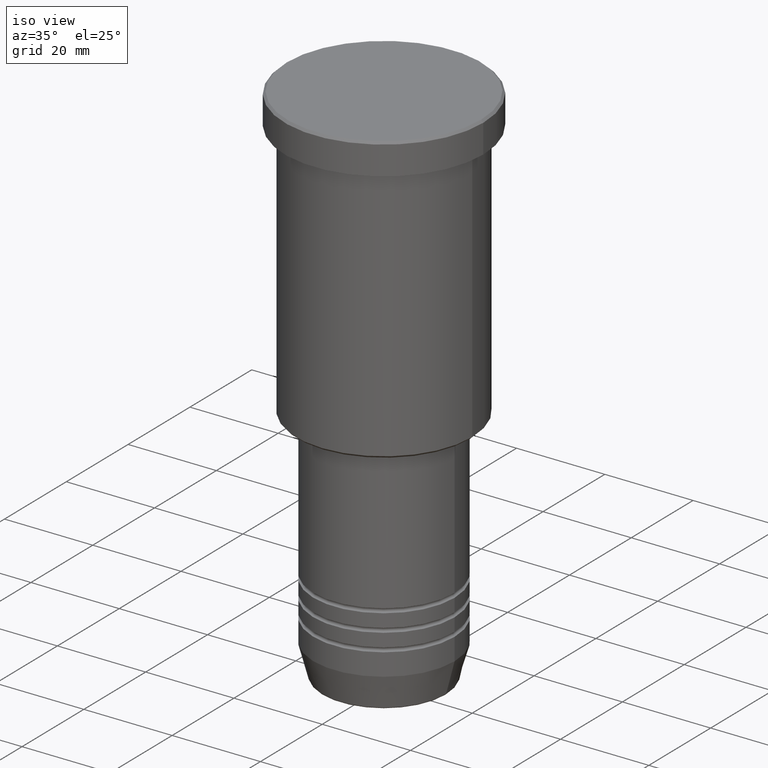
[diagram: clean part render]
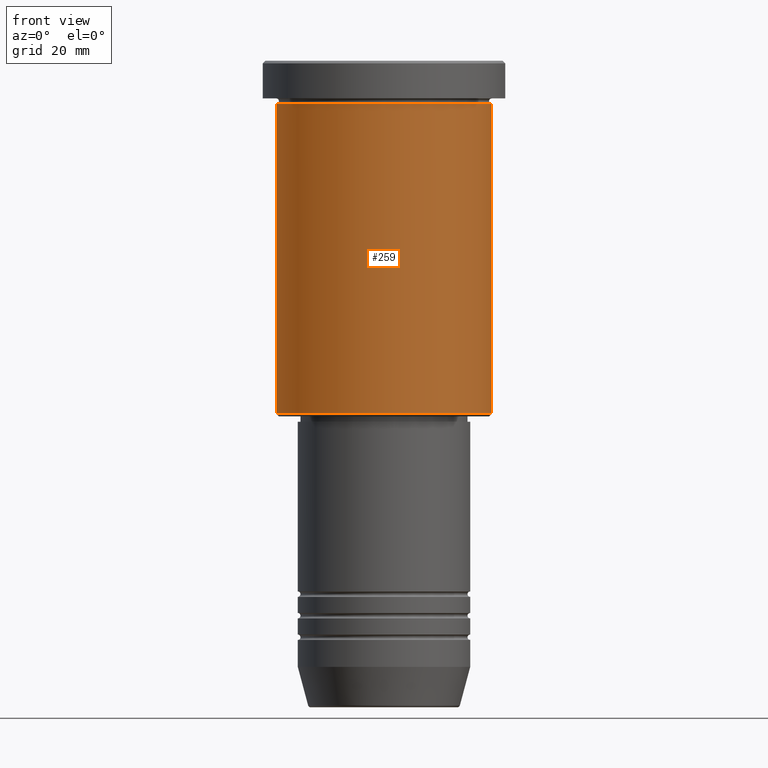
[diagram: tour spotlight — one face highlighted and labeled with its STEP entity id]
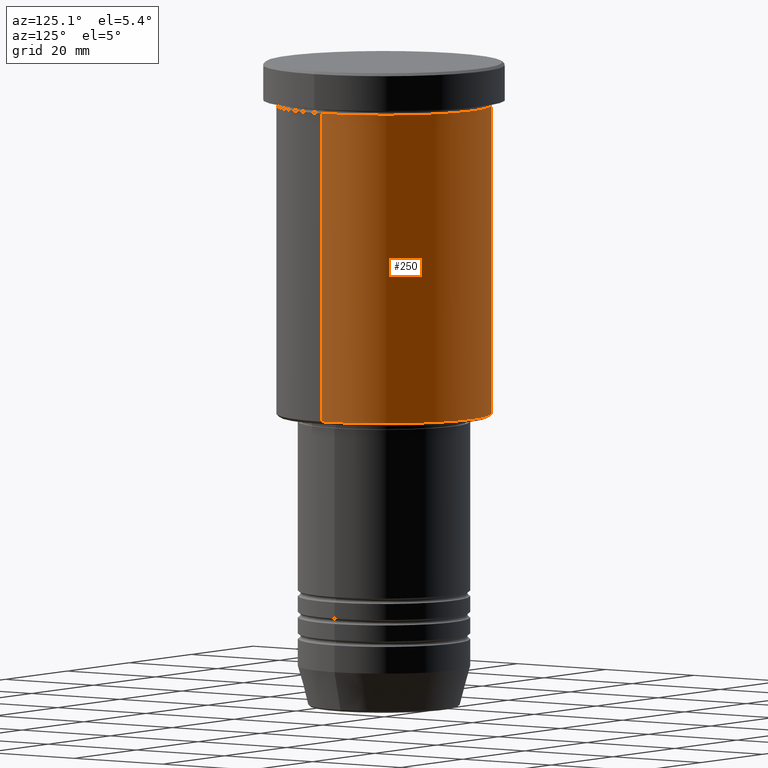
[diagram: tour spotlight — one face highlighted and labeled with its STEP entity id]
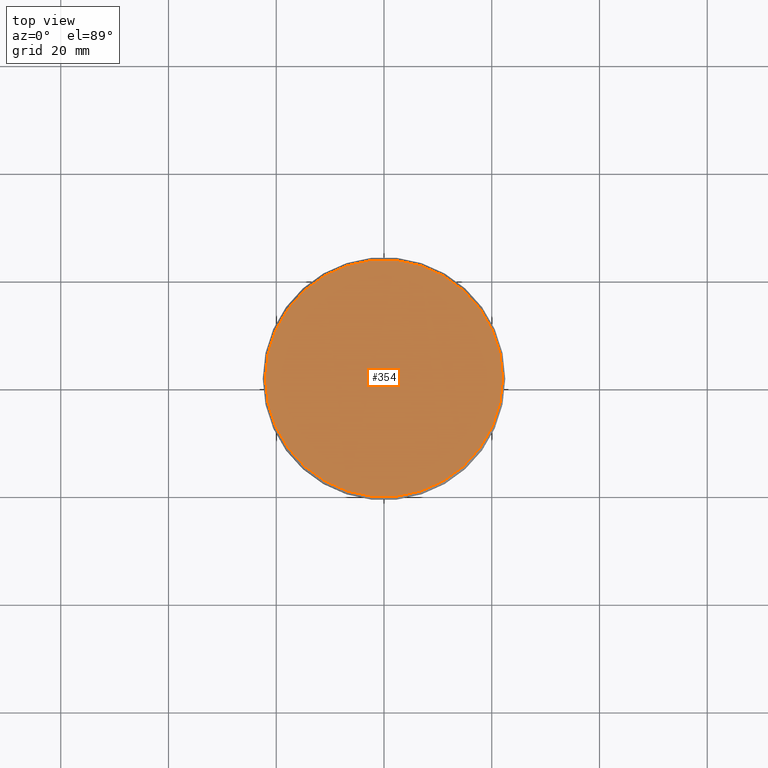
[diagram: tour spotlight — one face highlighted and labeled with its STEP entity id]
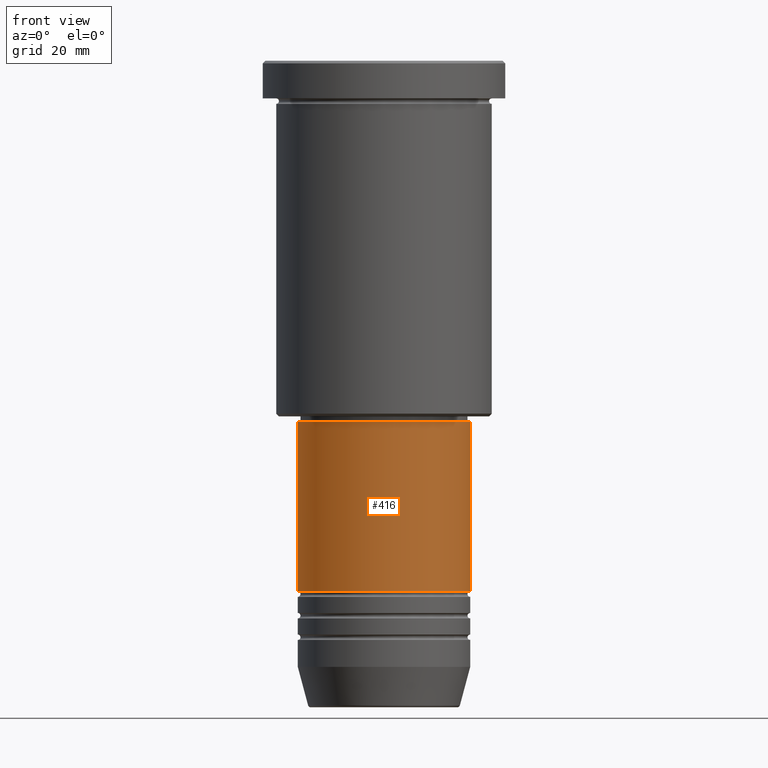
[diagram: tour spotlight — one face highlighted and labeled with its STEP entity id]
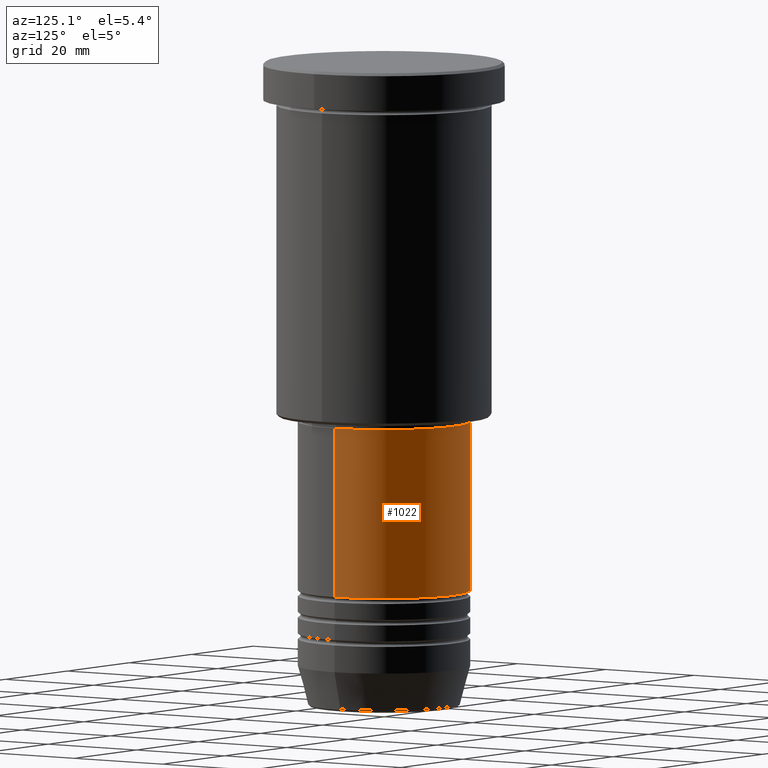
[diagram: tour spotlight — one face highlighted and labeled with its STEP entity id]
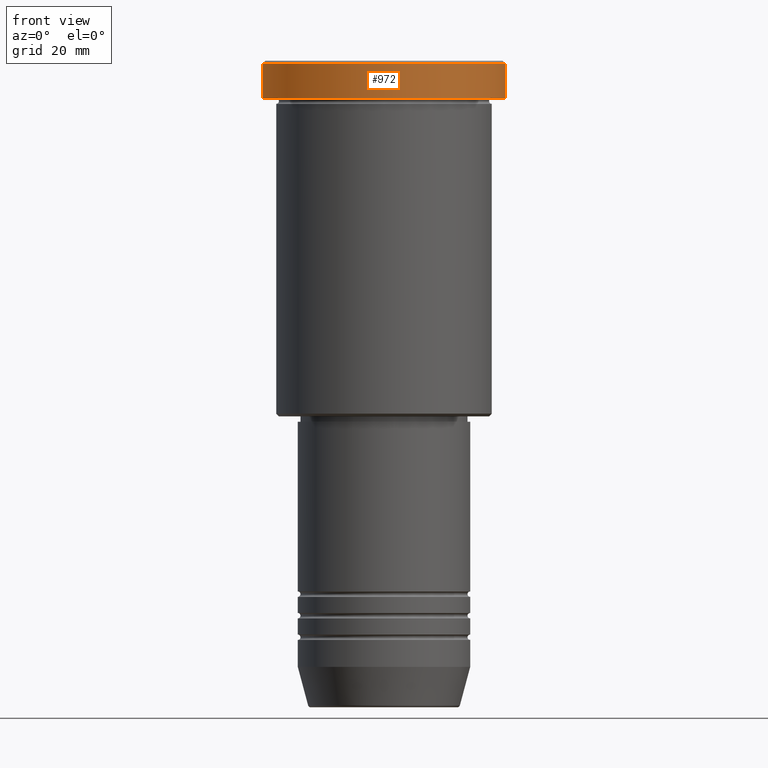
[diagram: tour spotlight — one face highlighted and labeled with its STEP entity id]
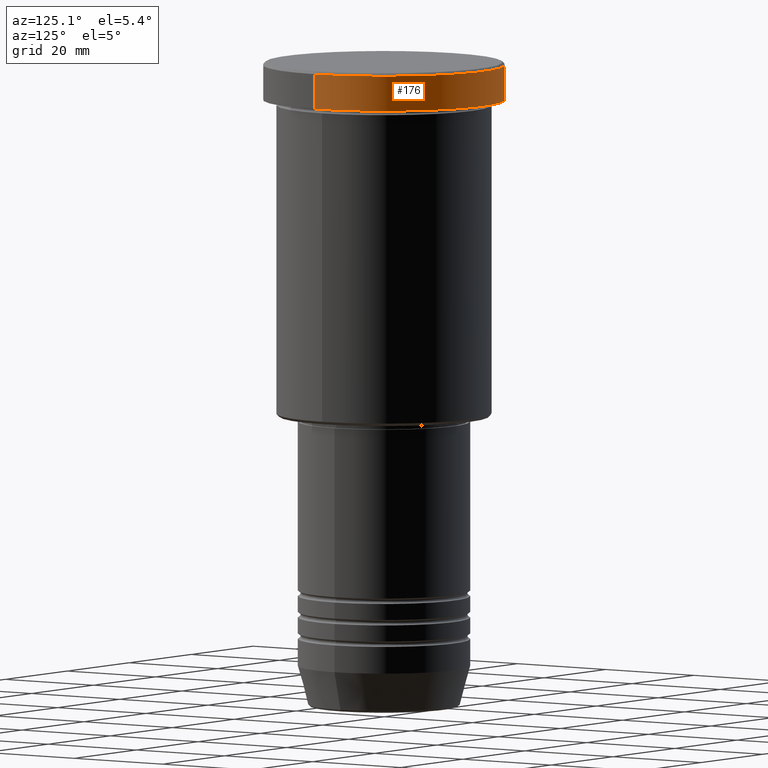
[diagram: tour spotlight — one face highlighted and labeled with its STEP entity id]
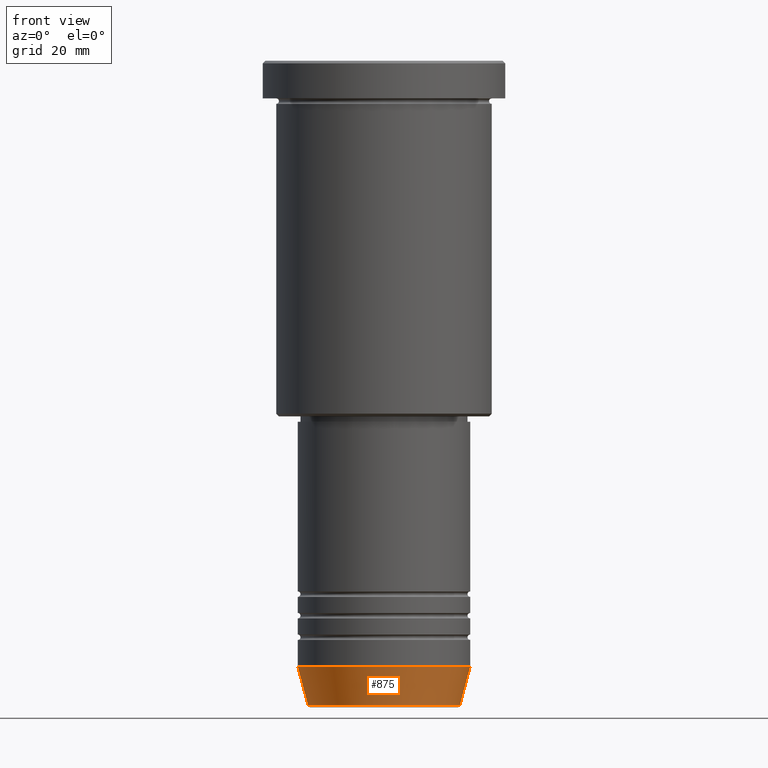
[diagram: tour spotlight — one face highlighted and labeled with its STEP entity id]
A machine part: a face-by-face anatomy tour. The part has 43 B-rep faces; the first image is the clean iso view, then the 8 largest visible faces are spotlighted one at a time (largest first), each with its STEP entity span.

Face 1 — front view, entity #259. In plain terms, the highlighted cylindrical surface (partial cylindrical patch) has radius 20 mm, axis along (-0, -0, 1).
Definition (entity closure, byte-faithful):
#16 = CARTESIAN_POINT ( 'NONE',  ( 0.000000000000000000, 0.000000000000000000, -7.999999999999994671 ) ) ;
#25 = DIRECTION ( 'NONE',  ( 1.000000000000000000, 0.000000000000000000, 0.000000000000000000 ) ) ;
#96 = VERTEX_POINT ( 'NONE', #858 ) ;
#125 = EDGE_CURVE ( 'NONE', #96, #786, #397, .T. ) ;
#132 = EDGE_LOOP ( 'NONE', ( #145, #516, #413, #903 ) ) ;
#145 = ORIENTED_EDGE ( 'NONE', *, *, #125, .F. ) ;
#151 = CARTESIAN_POINT ( 'NONE',  ( 0.000000000000000000, 0.000000000000000000, -65.49999999999997158 ) ) ;
#179 = CARTESIAN_POINT ( 'NONE',  ( 20.00000000000000355, 0.000000000000000000, -65.49999999999997158 ) ) ;
#184 = AXIS2_PLACEMENT_3D ( 'NONE', #201, #563, #468 ) ;
#201 = CARTESIAN_POINT ( 'NONE',  ( 0.000000000000000000, 0.000000000000000000, 0.000000000000000000 ) ) ;
#203 = CIRCLE ( 'NONE', #1119, 20.00000000000000355 ) ;
#232 = EDGE_CURVE ( 'NONE', #627, #827, #1045, .T. ) ;
#259 = ADVANCED_FACE ( 'NONE', ( #571 ), #1138, .T. ) ;
#268 = DIRECTION ( 'NONE',  ( -0.000000000000000000, -0.000000000000000000, 1.000000000000000000 ) ) ;
#309 = CIRCLE ( 'NONE', #467, 20.00000000000000000 ) ;
#348 = VECTOR ( 'NONE', #672, 1000.000000000000000 ) ;
#373 = EDGE_CURVE ( 'NONE', #786, #827, #309, .T. ) ;
#390 = DIRECTION ( 'NONE',  ( -0.000000000000000000, -0.000000000000000000, 1.000000000000000000 ) ) ;
#397 = LINE ( 'NONE', #481, #1051 ) ;
#413 = ORIENTED_EDGE ( 'NONE', *, *, #232, .T. ) ;
#467 = AXIS2_PLACEMENT_3D ( 'NONE', #16, #268, #25 ) ;
#468 = DIRECTION ( 'NONE',  ( 1.000000000000000000, 0.000000000000000000, 0.000000000000000000 ) ) ;
#481 = CARTESIAN_POINT ( 'NONE',  ( -20.00000000000000355, 2.449293598294706907E-15, 0.000000000000000000 ) ) ;
#516 = ORIENTED_EDGE ( 'NONE', *, *, #1170, .T. ) ;
#563 = DIRECTION ( 'NONE',  ( -0.000000000000000000, -0.000000000000000000, 1.000000000000000000 ) ) ;
#571 = FACE_OUTER_BOUND ( 'NONE', #132, .T. ) ;
#627 = VERTEX_POINT ( 'NONE', #179 ) ;
#672 = DIRECTION ( 'NONE',  ( -0.000000000000000000, -0.000000000000000000, 1.000000000000000000 ) ) ;
#718 = CARTESIAN_POINT ( 'NONE',  ( -20.00000000000000000, 2.449293598294706513E-15, -7.999999999999994671 ) ) ;
#754 = DIRECTION ( 'NONE',  ( -1.000000000000000000, 0.000000000000000000, 0.000000000000000000 ) ) ;
#768 = CARTESIAN_POINT ( 'NONE',  ( 20.00000000000000355, 0.000000000000000000, 0.000000000000000000 ) ) ;
#786 = VERTEX_POINT ( 'NONE', #718 ) ;
#797 = CARTESIAN_POINT ( 'NONE',  ( 20.00000000000000000, 0.000000000000000000, -7.999999999999994671 ) ) ;
#827 = VERTEX_POINT ( 'NONE', #797 ) ;
#858 = CARTESIAN_POINT ( 'NONE',  ( -20.00000000000000355, 2.449293598294706907E-15, -65.49999999999997158 ) ) ;
#903 = ORIENTED_EDGE ( 'NONE', *, *, #373, .F. ) ;
#1045 = LINE ( 'NONE', #768, #348 ) ;
#1047 = DIRECTION ( 'NONE',  ( -0.000000000000000000, -0.000000000000000000, 1.000000000000000000 ) ) ;
#1051 = VECTOR ( 'NONE', #390, 1000.000000000000000 ) ;
#1119 = AXIS2_PLACEMENT_3D ( 'NONE', #151, #1047, #754 ) ;
#1138 = CYLINDRICAL_SURFACE ( 'NONE', #184, 20.00000000000000355 ) ;
#1170 = EDGE_CURVE ( 'NONE', #96, #627, #203, .T. ) ;

Face 2 — auxiliary view, entity #250. In plain terms, the highlighted cylindrical surface (partial cylindrical patch) has radius 20 mm, axis along (-0, -0, 1).
Definition (entity closure, byte-faithful):
#21 = EDGE_LOOP ( 'NONE', ( #765, #833, #795, #69 ) ) ;
#69 = ORIENTED_EDGE ( 'NONE', *, *, #232, .F. ) ;
#96 = VERTEX_POINT ( 'NONE', #858 ) ;
#125 = EDGE_CURVE ( 'NONE', #96, #786, #397, .T. ) ;
#134 = DIRECTION ( 'NONE',  ( -0.000000000000000000, -0.000000000000000000, 1.000000000000000000 ) ) ;
#160 = CIRCLE ( 'NONE', #932, 20.00000000000000000 ) ;
#179 = CARTESIAN_POINT ( 'NONE',  ( 20.00000000000000355, 0.000000000000000000, -65.49999999999997158 ) ) ;
#187 = DIRECTION ( 'NONE',  ( 1.000000000000000000, 0.000000000000000000, 0.000000000000000000 ) ) ;
#232 = EDGE_CURVE ( 'NONE', #627, #827, #1045, .T. ) ;
#250 = ADVANCED_FACE ( 'NONE', ( #1032 ), #950, .T. ) ;
#348 = VECTOR ( 'NONE', #672, 1000.000000000000000 ) ;
#390 = DIRECTION ( 'NONE',  ( -0.000000000000000000, -0.000000000000000000, 1.000000000000000000 ) ) ;
#397 = LINE ( 'NONE', #481, #1051 ) ;
#400 = EDGE_CURVE ( 'NONE', #827, #786, #160, .T. ) ;
#401 = AXIS2_PLACEMENT_3D ( 'NONE', #587, #134, #496 ) ;
#422 = CARTESIAN_POINT ( 'NONE',  ( 0.000000000000000000, 0.000000000000000000, -65.49999999999997158 ) ) ;
#442 = DIRECTION ( 'NONE',  ( -0.000000000000000000, -0.000000000000000000, 1.000000000000000000 ) ) ;
#481 = CARTESIAN_POINT ( 'NONE',  ( -20.00000000000000355, 2.449293598294706907E-15, 0.000000000000000000 ) ) ;
#496 = DIRECTION ( 'NONE',  ( 1.000000000000000000, 0.000000000000000000, 0.000000000000000000 ) ) ;
#587 = CARTESIAN_POINT ( 'NONE',  ( 0.000000000000000000, 0.000000000000000000, 0.000000000000000000 ) ) ;
#627 = VERTEX_POINT ( 'NONE', #179 ) ;
#635 = DIRECTION ( 'NONE',  ( -1.000000000000000000, 0.000000000000000000, 0.000000000000000000 ) ) ;
#672 = DIRECTION ( 'NONE',  ( -0.000000000000000000, -0.000000000000000000, 1.000000000000000000 ) ) ;
#680 = CIRCLE ( 'NONE', #965, 20.00000000000000355 ) ;
#718 = CARTESIAN_POINT ( 'NONE',  ( -20.00000000000000000, 2.449293598294706513E-15, -7.999999999999994671 ) ) ;
#727 = DIRECTION ( 'NONE',  ( -0.000000000000000000, -0.000000000000000000, 1.000000000000000000 ) ) ;
#765 = ORIENTED_EDGE ( 'NONE', *, *, #943, .T. ) ;
#768 = CARTESIAN_POINT ( 'NONE',  ( 20.00000000000000355, 0.000000000000000000, 0.000000000000000000 ) ) ;
#786 = VERTEX_POINT ( 'NONE', #718 ) ;
#795 = ORIENTED_EDGE ( 'NONE', *, *, #400, .F. ) ;
#797 = CARTESIAN_POINT ( 'NONE',  ( 20.00000000000000000, 0.000000000000000000, -7.999999999999994671 ) ) ;
#802 = CARTESIAN_POINT ( 'NONE',  ( 0.000000000000000000, 0.000000000000000000, -7.999999999999994671 ) ) ;
#827 = VERTEX_POINT ( 'NONE', #797 ) ;
#833 = ORIENTED_EDGE ( 'NONE', *, *, #125, .T. ) ;
#858 = CARTESIAN_POINT ( 'NONE',  ( -20.00000000000000355, 2.449293598294706907E-15, -65.49999999999997158 ) ) ;
#932 = AXIS2_PLACEMENT_3D ( 'NONE', #802, #442, #187 ) ;
#943 = EDGE_CURVE ( 'NONE', #627, #96, #680, .T. ) ;
#950 = CYLINDRICAL_SURFACE ( 'NONE', #401, 20.00000000000000355 ) ;
#965 = AXIS2_PLACEMENT_3D ( 'NONE', #422, #727, #635 ) ;
#1032 = FACE_OUTER_BOUND ( 'NONE', #21, .T. ) ;
#1045 = LINE ( 'NONE', #768, #348 ) ;
#1051 = VECTOR ( 'NONE', #390, 1000.000000000000000 ) ;

Face 3 — top view, entity #354. In plain terms, the highlighted planar face has unit normal (0, -0, 1).
Definition (entity closure, byte-faithful):
#181 = DIRECTION ( 'NONE',  ( 0.000000000000000000, -0.000000000000000000, 1.000000000000000000 ) ) ;
#273 = PLANE ( 'NONE',  #562 ) ;
#303 = ORIENTED_EDGE ( 'NONE', *, *, #995, .T. ) ;
#354 = ADVANCED_FACE ( 'NONE', ( #1090 ), #273, .T. ) ;
#415 = CARTESIAN_POINT ( 'NONE',  ( 22.00000000000002132, 2.724839128102862174E-15, 0.000000000000000000 ) ) ;
#465 = DIRECTION ( 'NONE',  ( -0.000000000000000000, -0.000000000000000000, 1.000000000000000000 ) ) ;
#562 = AXIS2_PLACEMENT_3D ( 'NONE', #999, #181, #721 ) ;
#566 = EDGE_CURVE ( 'NONE', #946, #812, #1056, .T. ) ;
#615 = CARTESIAN_POINT ( 'NONE',  ( 0.000000000000000000, 0.000000000000000000, 0.000000000000000000 ) ) ;
#621 = DIRECTION ( 'NONE',  ( -0.000000000000000000, -0.000000000000000000, 1.000000000000000000 ) ) ;
#653 = DIRECTION ( 'NONE',  ( 1.000000000000000000, 0.000000000000000000, 0.000000000000000000 ) ) ;
#658 = CIRCLE ( 'NONE', #822, 22.00000000000002132 ) ;
#721 = DIRECTION ( 'NONE',  ( 1.000000000000000000, 0.000000000000000000, 0.000000000000000000 ) ) ;
#750 = CARTESIAN_POINT ( 'NONE',  ( 0.000000000000000000, 0.000000000000000000, 0.000000000000000000 ) ) ;
#812 = VERTEX_POINT ( 'NONE', #415 ) ;
#822 = AXIS2_PLACEMENT_3D ( 'NONE', #750, #465, #653 ) ;
#887 = ORIENTED_EDGE ( 'NONE', *, *, #566, .T. ) ;
#946 = VERTEX_POINT ( 'NONE', #1108 ) ;
#995 = EDGE_CURVE ( 'NONE', #812, #946, #658, .T. ) ;
#999 = CARTESIAN_POINT ( 'NONE',  ( 0.000000000000000000, 0.000000000000000000, 0.000000000000000000 ) ) ;
#1036 = EDGE_LOOP ( 'NONE', ( #887, #303 ) ) ;
#1056 = CIRCLE ( 'NONE', #1179, 22.00000000000002132 ) ;
#1090 = FACE_OUTER_BOUND ( 'NONE', #1036, .T. ) ;
#1108 = CARTESIAN_POINT ( 'NONE',  ( -22.00000000000002132, 0.000000000000000000, 0.000000000000000000 ) ) ;
#1152 = DIRECTION ( 'NONE',  ( 1.000000000000000000, 0.000000000000000000, 0.000000000000000000 ) ) ;
#1179 = AXIS2_PLACEMENT_3D ( 'NONE', #615, #621, #1152 ) ;

Face 4 — front view, entity #416. In plain terms, the highlighted cylindrical surface (partial cylindrical patch) has radius 16 mm, axis along (-0, -0, 1).
Definition (entity closure, byte-faithful):
#19 = DIRECTION ( 'NONE',  ( -0.000000000000000000, -0.000000000000000000, 1.000000000000000000 ) ) ;
#43 = CARTESIAN_POINT ( 'NONE',  ( 16.00000000000000000, 0.000000000000000000, -67.00000000000002842 ) ) ;
#49 = CARTESIAN_POINT ( 'NONE',  ( 16.00000000000000000, 0.000000000000000000, 0.000000000000000000 ) ) ;
#61 = VERTEX_POINT ( 'NONE', #1165 ) ;
#99 = EDGE_CURVE ( 'NONE', #61, #254, #302, .T. ) ;
#102 = DIRECTION ( 'NONE',  ( 1.000000000000000000, 0.000000000000000000, 0.000000000000000000 ) ) ;
#180 = ORIENTED_EDGE ( 'NONE', *, *, #99, .F. ) ;
#193 = CARTESIAN_POINT ( 'NONE',  ( 16.00000000000000000, 0.000000000000000000, -98.49999999999997158 ) ) ;
#210 = DIRECTION ( 'NONE',  ( -0.000000000000000000, -0.000000000000000000, 1.000000000000000000 ) ) ;
#233 = DIRECTION ( 'NONE',  ( -0.000000000000000000, -0.000000000000000000, 1.000000000000000000 ) ) ;
#238 = AXIS2_PLACEMENT_3D ( 'NONE', #647, #1092, #815 ) ;
#252 = VERTEX_POINT ( 'NONE', #43 ) ;
#254 = VERTEX_POINT ( 'NONE', #404 ) ;
#298 = CARTESIAN_POINT ( 'NONE',  ( 0.000000000000000000, 0.000000000000000000, -67.00000000000002842 ) ) ;
#302 = LINE ( 'NONE', #393, #911 ) ;
#305 = DIRECTION ( 'NONE',  ( 1.000000000000000000, 0.000000000000000000, 0.000000000000000000 ) ) ;
#393 = CARTESIAN_POINT ( 'NONE',  ( -16.00000000000000000, 1.959434878635765131E-15, 0.000000000000000000 ) ) ;
#404 = CARTESIAN_POINT ( 'NONE',  ( -16.00000000000000000, 1.959434878635765131E-15, -67.00000000000002842 ) ) ;
#416 = ADVANCED_FACE ( 'NONE', ( #525 ), #1069, .T. ) ;
#430 = ORIENTED_EDGE ( 'NONE', *, *, #1084, .T. ) ;
#515 = LINE ( 'NONE', #49, #910 ) ;
#525 = FACE_OUTER_BOUND ( 'NONE', #619, .T. ) ;
#553 = ORIENTED_EDGE ( 'NONE', *, *, #990, .T. ) ;
#560 = CIRCLE ( 'NONE', #1080, 16.00000000000000000 ) ;
#619 = EDGE_LOOP ( 'NONE', ( #180, #553, #430, #704 ) ) ;
#645 = AXIS2_PLACEMENT_3D ( 'NONE', #298, #210, #305 ) ;
#647 = CARTESIAN_POINT ( 'NONE',  ( 0.000000000000000000, 0.000000000000000000, 0.000000000000000000 ) ) ;
#671 = EDGE_CURVE ( 'NONE', #254, #252, #1158, .T. ) ;
#704 = ORIENTED_EDGE ( 'NONE', *, *, #671, .F. ) ;
#815 = DIRECTION ( 'NONE',  ( 1.000000000000000000, 0.000000000000000000, 0.000000000000000000 ) ) ;
#878 = DIRECTION ( 'NONE',  ( -0.000000000000000000, -0.000000000000000000, 1.000000000000000000 ) ) ;
#910 = VECTOR ( 'NONE', #233, 1000.000000000000000 ) ;
#911 = VECTOR ( 'NONE', #878, 1000.000000000000000 ) ;
#931 = CARTESIAN_POINT ( 'NONE',  ( 0.000000000000000000, 0.000000000000000000, -98.49999999999997158 ) ) ;
#968 = VERTEX_POINT ( 'NONE', #193 ) ;
#990 = EDGE_CURVE ( 'NONE', #61, #968, #560, .T. ) ;
#1069 = CYLINDRICAL_SURFACE ( 'NONE', #238, 16.00000000000000000 ) ;
#1080 = AXIS2_PLACEMENT_3D ( 'NONE', #931, #19, #102 ) ;
#1084 = EDGE_CURVE ( 'NONE', #968, #252, #515, .T. ) ;
#1092 = DIRECTION ( 'NONE',  ( -0.000000000000000000, -0.000000000000000000, 1.000000000000000000 ) ) ;
#1158 = CIRCLE ( 'NONE', #645, 16.00000000000000000 ) ;
#1165 = CARTESIAN_POINT ( 'NONE',  ( -16.00000000000000000, 1.959434878635765131E-15, -98.49999999999997158 ) ) ;

Face 5 — auxiliary view, entity #1022. In plain terms, the highlighted cylindrical surface (partial cylindrical patch) has radius 16 mm, axis along (-0, -0, 1).
Definition (entity closure, byte-faithful):
#9 = EDGE_CURVE ( 'NONE', #252, #254, #1018, .T. ) ;
#28 = AXIS2_PLACEMENT_3D ( 'NONE', #897, #71, #249 ) ;
#43 = CARTESIAN_POINT ( 'NONE',  ( 16.00000000000000000, 0.000000000000000000, -67.00000000000002842 ) ) ;
#49 = CARTESIAN_POINT ( 'NONE',  ( 16.00000000000000000, 0.000000000000000000, 0.000000000000000000 ) ) ;
#61 = VERTEX_POINT ( 'NONE', #1165 ) ;
#64 = AXIS2_PLACEMENT_3D ( 'NONE', #949, #884, #489 ) ;
#71 = DIRECTION ( 'NONE',  ( -0.000000000000000000, -0.000000000000000000, 1.000000000000000000 ) ) ;
#99 = EDGE_CURVE ( 'NONE', #61, #254, #302, .T. ) ;
#193 = CARTESIAN_POINT ( 'NONE',  ( 16.00000000000000000, 0.000000000000000000, -98.49999999999997158 ) ) ;
#233 = DIRECTION ( 'NONE',  ( -0.000000000000000000, -0.000000000000000000, 1.000000000000000000 ) ) ;
#249 = DIRECTION ( 'NONE',  ( 1.000000000000000000, 0.000000000000000000, 0.000000000000000000 ) ) ;
#252 = VERTEX_POINT ( 'NONE', #43 ) ;
#254 = VERTEX_POINT ( 'NONE', #404 ) ;
#302 = LINE ( 'NONE', #393, #911 ) ;
#364 = FACE_OUTER_BOUND ( 'NONE', #604, .T. ) ;
#393 = CARTESIAN_POINT ( 'NONE',  ( -16.00000000000000000, 1.959434878635765131E-15, 0.000000000000000000 ) ) ;
#404 = CARTESIAN_POINT ( 'NONE',  ( -16.00000000000000000, 1.959434878635765131E-15, -67.00000000000002842 ) ) ;
#446 = AXIS2_PLACEMENT_3D ( 'NONE', #1093, #1013, #629 ) ;
#489 = DIRECTION ( 'NONE',  ( 1.000000000000000000, 0.000000000000000000, 0.000000000000000000 ) ) ;
#515 = LINE ( 'NONE', #49, #910 ) ;
#520 = EDGE_CURVE ( 'NONE', #968, #61, #837, .T. ) ;
#521 = ORIENTED_EDGE ( 'NONE', *, *, #99, .T. ) ;
#604 = EDGE_LOOP ( 'NONE', ( #695, #521, #959, #752 ) ) ;
#629 = DIRECTION ( 'NONE',  ( 1.000000000000000000, 0.000000000000000000, 0.000000000000000000 ) ) ;
#695 = ORIENTED_EDGE ( 'NONE', *, *, #520, .T. ) ;
#752 = ORIENTED_EDGE ( 'NONE', *, *, #1084, .F. ) ;
#834 = CYLINDRICAL_SURFACE ( 'NONE', #446, 16.00000000000000000 ) ;
#837 = CIRCLE ( 'NONE', #64, 16.00000000000000000 ) ;
#878 = DIRECTION ( 'NONE',  ( -0.000000000000000000, -0.000000000000000000, 1.000000000000000000 ) ) ;
#884 = DIRECTION ( 'NONE',  ( -0.000000000000000000, -0.000000000000000000, 1.000000000000000000 ) ) ;
#897 = CARTESIAN_POINT ( 'NONE',  ( 0.000000000000000000, 0.000000000000000000, -67.00000000000002842 ) ) ;
#910 = VECTOR ( 'NONE', #233, 1000.000000000000000 ) ;
#911 = VECTOR ( 'NONE', #878, 1000.000000000000000 ) ;
#949 = CARTESIAN_POINT ( 'NONE',  ( 0.000000000000000000, 0.000000000000000000, -98.49999999999997158 ) ) ;
#959 = ORIENTED_EDGE ( 'NONE', *, *, #9, .F. ) ;
#968 = VERTEX_POINT ( 'NONE', #193 ) ;
#1013 = DIRECTION ( 'NONE',  ( -0.000000000000000000, -0.000000000000000000, 1.000000000000000000 ) ) ;
#1018 = CIRCLE ( 'NONE', #28, 16.00000000000000000 ) ;
#1022 = ADVANCED_FACE ( 'NONE', ( #364 ), #834, .T. ) ;
#1084 = EDGE_CURVE ( 'NONE', #968, #252, #515, .T. ) ;
#1093 = CARTESIAN_POINT ( 'NONE',  ( 0.000000000000000000, 0.000000000000000000, 0.000000000000000000 ) ) ;
#1165 = CARTESIAN_POINT ( 'NONE',  ( -16.00000000000000000, 1.959434878635765131E-15, -98.49999999999997158 ) ) ;

Face 6 — front view, entity #972. In plain terms, the highlighted cylindrical surface (partial cylindrical patch) has radius 22.5 mm, axis along (-0, -0, 1).
Definition (entity closure, byte-faithful):
#4 = CARTESIAN_POINT ( 'NONE',  ( -22.50000000000000000, 2.755455298081544778E-15, -0.4999999999999796274 ) ) ;
#52 = EDGE_CURVE ( 'NONE', #859, #612, #659, .T. ) ;
#131 = DIRECTION ( 'NONE',  ( -0.000000000000000000, -0.000000000000000000, 1.000000000000000000 ) ) ;
#146 = AXIS2_PLACEMENT_3D ( 'NONE', #906, #1182, #178 ) ;
#178 = DIRECTION ( 'NONE',  ( 1.000000000000000000, 0.000000000000000000, 0.000000000000000000 ) ) ;
#189 = LINE ( 'NONE', #746, #1173 ) ;
#195 = EDGE_CURVE ( 'NONE', #859, #323, #1140, .T. ) ;
#199 = CARTESIAN_POINT ( 'NONE',  ( 22.50000000000000000, 0.000000000000000000, -6.999999999999995559 ) ) ;
#272 = CYLINDRICAL_SURFACE ( 'NONE', #146, 22.50000000000000000 ) ;
#288 = ORIENTED_EDGE ( 'NONE', *, *, #52, .T. ) ;
#292 = DIRECTION ( 'NONE',  ( 0.000000000000000000, 0.000000000000000000, -1.000000000000000000 ) ) ;
#310 = CIRCLE ( 'NONE', #963, 22.50000000000000000 ) ;
#313 = EDGE_LOOP ( 'NONE', ( #363, #288, #482, #848 ) ) ;
#323 = VERTEX_POINT ( 'NONE', #4 ) ;
#334 = DIRECTION ( 'NONE',  ( -0.000000000000000000, -0.000000000000000000, 1.000000000000000000 ) ) ;
#345 = CARTESIAN_POINT ( 'NONE',  ( -22.50000000000000000, 2.755455298081544778E-15, -6.999999999999995559 ) ) ;
#363 = ORIENTED_EDGE ( 'NONE', *, *, #195, .F. ) ;
#482 = ORIENTED_EDGE ( 'NONE', *, *, #1057, .T. ) ;
#524 = AXIS2_PLACEMENT_3D ( 'NONE', #1049, #334, #1078 ) ;
#549 = DIRECTION ( 'NONE',  ( -0.000000000000000000, -0.000000000000000000, 1.000000000000000000 ) ) ;
#612 = VERTEX_POINT ( 'NONE', #199 ) ;
#659 = CIRCLE ( 'NONE', #524, 22.50000000000000000 ) ;
#668 = DIRECTION ( 'NONE',  ( 1.000000000000000000, 0.000000000000000000, 0.000000000000000000 ) ) ;
#735 = EDGE_CURVE ( 'NONE', #1134, #323, #310, .T. ) ;
#746 = CARTESIAN_POINT ( 'NONE',  ( 22.50000000000000000, 0.000000000000000000, 0.000000000000000000 ) ) ;
#848 = ORIENTED_EDGE ( 'NONE', *, *, #735, .T. ) ;
#859 = VERTEX_POINT ( 'NONE', #345 ) ;
#906 = CARTESIAN_POINT ( 'NONE',  ( 0.000000000000000000, 0.000000000000000000, 0.000000000000000000 ) ) ;
#952 = CARTESIAN_POINT ( 'NONE',  ( -22.50000000000000000, 2.755455298081544778E-15, 0.000000000000000000 ) ) ;
#963 = AXIS2_PLACEMENT_3D ( 'NONE', #1087, #292, #668 ) ;
#972 = ADVANCED_FACE ( 'NONE', ( #997 ), #272, .T. ) ;
#983 = VECTOR ( 'NONE', #131, 1000.000000000000000 ) ;
#997 = FACE_OUTER_BOUND ( 'NONE', #313, .T. ) ;
#1049 = CARTESIAN_POINT ( 'NONE',  ( 0.000000000000000000, 0.000000000000000000, -6.999999999999995559 ) ) ;
#1057 = EDGE_CURVE ( 'NONE', #612, #1134, #189, .T. ) ;
#1078 = DIRECTION ( 'NONE',  ( 1.000000000000000000, 0.000000000000000000, 0.000000000000000000 ) ) ;
#1087 = CARTESIAN_POINT ( 'NONE',  ( 0.000000000000000000, 0.000000000000000000, -0.4999999999999796274 ) ) ;
#1134 = VERTEX_POINT ( 'NONE', #1148 ) ;
#1140 = LINE ( 'NONE', #952, #983 ) ;
#1148 = CARTESIAN_POINT ( 'NONE',  ( 22.50000000000000000, 0.000000000000000000, -0.4999999999999796274 ) ) ;
#1173 = VECTOR ( 'NONE', #549, 1000.000000000000000 ) ;
#1182 = DIRECTION ( 'NONE',  ( -0.000000000000000000, -0.000000000000000000, 1.000000000000000000 ) ) ;

Face 7 — auxiliary view, entity #176. In plain terms, the highlighted cylindrical surface (partial cylindrical patch) has radius 22.5 mm, axis along (-0, -0, 1).
Definition (entity closure, byte-faithful):
#4 = CARTESIAN_POINT ( 'NONE',  ( -22.50000000000000000, 2.755455298081544778E-15, -0.4999999999999796274 ) ) ;
#11 = AXIS2_PLACEMENT_3D ( 'NONE', #1123, #770, #46 ) ;
#29 = CIRCLE ( 'NONE', #1132, 22.50000000000000000 ) ;
#33 = ORIENTED_EDGE ( 'NONE', *, *, #778, .T. ) ;
#46 = DIRECTION ( 'NONE',  ( 1.000000000000000000, 0.000000000000000000, 0.000000000000000000 ) ) ;
#100 = ORIENTED_EDGE ( 'NONE', *, *, #383, .T. ) ;
#127 = FACE_OUTER_BOUND ( 'NONE', #319, .T. ) ;
#131 = DIRECTION ( 'NONE',  ( -0.000000000000000000, -0.000000000000000000, 1.000000000000000000 ) ) ;
#176 = ADVANCED_FACE ( 'NONE', ( #127 ), #868, .T. ) ;
#189 = LINE ( 'NONE', #746, #1173 ) ;
#195 = EDGE_CURVE ( 'NONE', #859, #323, #1140, .T. ) ;
#199 = CARTESIAN_POINT ( 'NONE',  ( 22.50000000000000000, 0.000000000000000000, -6.999999999999995559 ) ) ;
#261 = CIRCLE ( 'NONE', #1117, 22.50000000000000000 ) ;
#319 = EDGE_LOOP ( 'NONE', ( #33, #873, #100, #1000 ) ) ;
#323 = VERTEX_POINT ( 'NONE', #4 ) ;
#345 = CARTESIAN_POINT ( 'NONE',  ( -22.50000000000000000, 2.755455298081544778E-15, -6.999999999999995559 ) ) ;
#361 = DIRECTION ( 'NONE',  ( 1.000000000000000000, 0.000000000000000000, 0.000000000000000000 ) ) ;
#383 = EDGE_CURVE ( 'NONE', #323, #1134, #261, .T. ) ;
#427 = DIRECTION ( 'NONE',  ( 1.000000000000000000, 0.000000000000000000, 0.000000000000000000 ) ) ;
#458 = CARTESIAN_POINT ( 'NONE',  ( 0.000000000000000000, 0.000000000000000000, -0.4999999999999796274 ) ) ;
#549 = DIRECTION ( 'NONE',  ( -0.000000000000000000, -0.000000000000000000, 1.000000000000000000 ) ) ;
#612 = VERTEX_POINT ( 'NONE', #199 ) ;
#746 = CARTESIAN_POINT ( 'NONE',  ( 22.50000000000000000, 0.000000000000000000, 0.000000000000000000 ) ) ;
#748 = CARTESIAN_POINT ( 'NONE',  ( 0.000000000000000000, 0.000000000000000000, -6.999999999999995559 ) ) ;
#770 = DIRECTION ( 'NONE',  ( -0.000000000000000000, -0.000000000000000000, 1.000000000000000000 ) ) ;
#778 = EDGE_CURVE ( 'NONE', #612, #859, #29, .T. ) ;
#859 = VERTEX_POINT ( 'NONE', #345 ) ;
#868 = CYLINDRICAL_SURFACE ( 'NONE', #11, 22.50000000000000000 ) ;
#873 = ORIENTED_EDGE ( 'NONE', *, *, #195, .T. ) ;
#952 = CARTESIAN_POINT ( 'NONE',  ( -22.50000000000000000, 2.755455298081544778E-15, 0.000000000000000000 ) ) ;
#983 = VECTOR ( 'NONE', #131, 1000.000000000000000 ) ;
#1000 = ORIENTED_EDGE ( 'NONE', *, *, #1057, .F. ) ;
#1008 = DIRECTION ( 'NONE',  ( 0.000000000000000000, 0.000000000000000000, -1.000000000000000000 ) ) ;
#1030 = DIRECTION ( 'NONE',  ( -0.000000000000000000, -0.000000000000000000, 1.000000000000000000 ) ) ;
#1057 = EDGE_CURVE ( 'NONE', #612, #1134, #189, .T. ) ;
#1117 = AXIS2_PLACEMENT_3D ( 'NONE', #458, #1008, #361 ) ;
#1123 = CARTESIAN_POINT ( 'NONE',  ( 0.000000000000000000, 0.000000000000000000, 0.000000000000000000 ) ) ;
#1132 = AXIS2_PLACEMENT_3D ( 'NONE', #748, #1030, #427 ) ;
#1134 = VERTEX_POINT ( 'NONE', #1148 ) ;
#1140 = LINE ( 'NONE', #952, #983 ) ;
#1148 = CARTESIAN_POINT ( 'NONE',  ( 22.50000000000000000, 0.000000000000000000, -0.4999999999999796274 ) ) ;
#1173 = VECTOR ( 'NONE', #549, 1000.000000000000000 ) ;

Face 8 — front view, entity #875. In plain terms, the highlighted conical surface has half-angle 15 deg.
Definition (entity closure, byte-faithful):
#39 = EDGE_CURVE ( 'NONE', #1025, #771, #62, .T. ) ;
#62 = LINE ( 'NONE', #436, #892 ) ;
#106 = CIRCLE ( 'NONE', #1116, 14.08968047592162698 ) ;
#111 = CARTESIAN_POINT ( 'NONE',  ( 0.000000000000000000, 0.000000000000000000, -112.4999999999999858 ) ) ;
#154 = ORIENTED_EDGE ( 'NONE', *, *, #981, .T. ) ;
#163 = VECTOR ( 'NONE', #914, 1000.000000000000000 ) ;
#169 = EDGE_CURVE ( 'NONE', #1025, #986, #106, .T. ) ;
#258 = FACE_OUTER_BOUND ( 'NONE', #384, .T. ) ;
#370 = AXIS2_PLACEMENT_3D ( 'NONE', #592, #1065, #810 ) ;
#384 = EDGE_LOOP ( 'NONE', ( #736, #1058, #154, #488 ) ) ;
#405 = CARTESIAN_POINT ( 'NONE',  ( 0.000000000000000000, 0.000000000000000000, -119.6294095225512564 ) ) ;
#420 = DIRECTION ( 'NONE',  ( -0.2588190451025213501, 3.169619151431772337E-17, 0.9659258262890680902 ) ) ;
#436 = CARTESIAN_POINT ( 'NONE',  ( -16.00000000000000000, 1.959434878635765131E-15, -112.4999999999999858 ) ) ;
#472 = CIRCLE ( 'NONE', #596, 16.00000000000000000 ) ;
#473 = CARTESIAN_POINT ( 'NONE',  ( -14.08968047592162698, 1.842461544110201269E-15, -119.6294095225512564 ) ) ;
#478 = VERTEX_POINT ( 'NONE', #586 ) ;
#488 = ORIENTED_EDGE ( 'NONE', *, *, #1026, .F. ) ;
#586 = CARTESIAN_POINT ( 'NONE',  ( 16.00000000000000000, 0.000000000000000000, -112.4999999999999858 ) ) ;
#592 = CARTESIAN_POINT ( 'NONE',  ( 0.000000000000000000, 0.000000000000000000, -112.4999999999999858 ) ) ;
#596 = AXIS2_PLACEMENT_3D ( 'NONE', #111, #737, #640 ) ;
#640 = DIRECTION ( 'NONE',  ( 1.000000000000000000, 0.000000000000000000, 0.000000000000000000 ) ) ;
#736 = ORIENTED_EDGE ( 'NONE', *, *, #39, .F. ) ;
#737 = DIRECTION ( 'NONE',  ( -0.000000000000000000, -0.000000000000000000, 1.000000000000000000 ) ) ;
#771 = VERTEX_POINT ( 'NONE', #805 ) ;
#805 = CARTESIAN_POINT ( 'NONE',  ( -16.00000000000000000, 1.959434878635765131E-15, -112.4999999999999858 ) ) ;
#810 = DIRECTION ( 'NONE',  ( 1.000000000000000000, 0.000000000000000000, 0.000000000000000000 ) ) ;
#818 = CARTESIAN_POINT ( 'NONE',  ( 14.08968047592162698, 0.000000000000000000, -119.6294095225512564 ) ) ;
#875 = ADVANCED_FACE ( 'NONE', ( #258 ), #896, .T. ) ;
#892 = VECTOR ( 'NONE', #420, 1000.000000000000000 ) ;
#896 = CONICAL_SURFACE ( 'NONE', #370, 16.00000000000000000, 0.2617993877991500740 ) ;
#914 = DIRECTION ( 'NONE',  ( 0.2588190451025213501, 0.000000000000000000, 0.9659258262890680902 ) ) ;
#922 = LINE ( 'NONE', #1101, #163 ) ;
#981 = EDGE_CURVE ( 'NONE', #986, #478, #922, .T. ) ;
#986 = VERTEX_POINT ( 'NONE', #818 ) ;
#1025 = VERTEX_POINT ( 'NONE', #473 ) ;
#1026 = EDGE_CURVE ( 'NONE', #771, #478, #472, .T. ) ;
#1040 = DIRECTION ( 'NONE',  ( 1.000000000000000000, 0.000000000000000000, 0.000000000000000000 ) ) ;
#1058 = ORIENTED_EDGE ( 'NONE', *, *, #169, .T. ) ;
#1065 = DIRECTION ( 'NONE',  ( -0.000000000000000000, -0.000000000000000000, 1.000000000000000000 ) ) ;
#1101 = CARTESIAN_POINT ( 'NONE',  ( 16.00000000000000000, 0.000000000000000000, -112.4999999999999858 ) ) ;
#1116 = AXIS2_PLACEMENT_3D ( 'NONE', #405, #1121, #1040 ) ;
#1121 = DIRECTION ( 'NONE',  ( -0.000000000000000000, -0.000000000000000000, 1.000000000000000000 ) ) ;